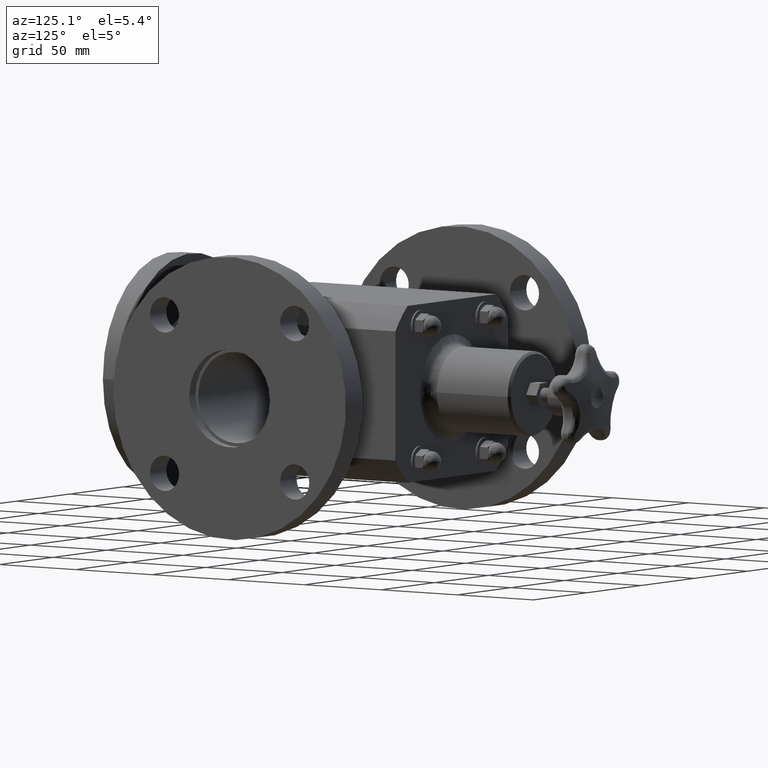
[diagram: clean part render]
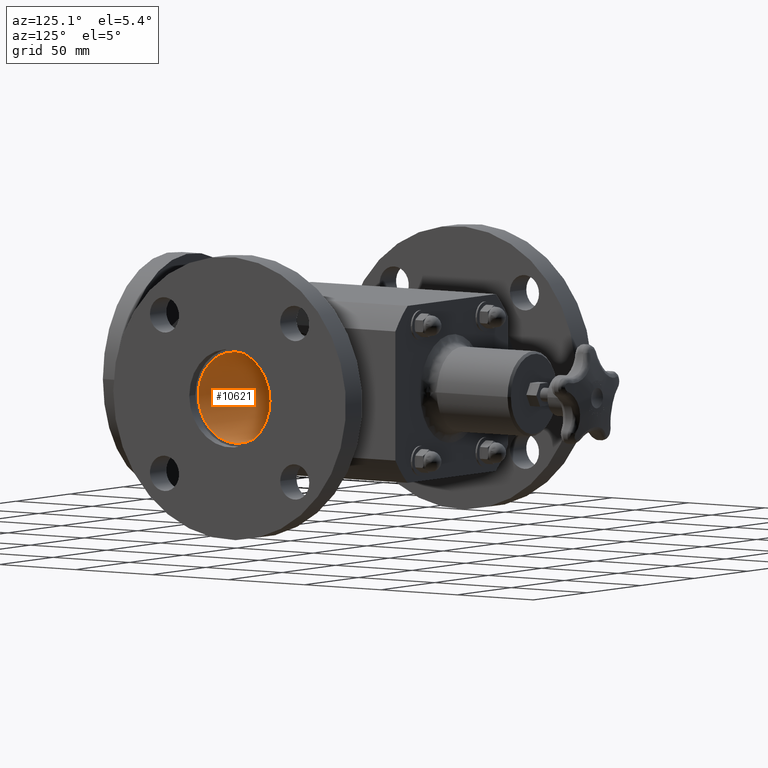
[diagram: same view with one face highlighted and labeled with its STEP entity id]
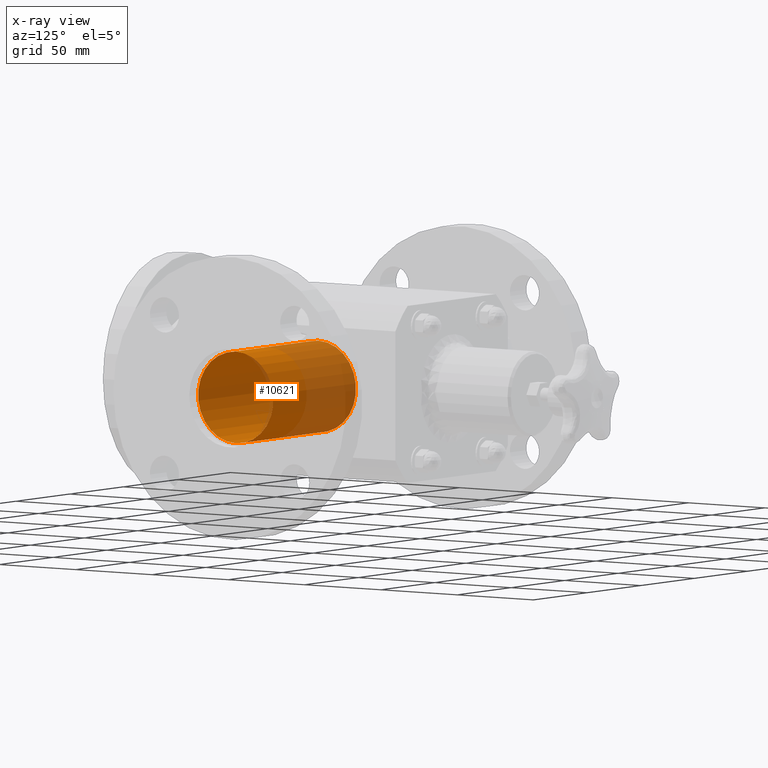
[diagram: x-ray of the same camera — body ghosted, the highlighted face saturated]
A machine part, auxiliary view. The second image highlights one B-rep face of the part: STEP entity #10621.
The next image is the same camera in x-ray: the body ghosted, the highlighted face saturated — about 37% of this face is hidden behind the body in this view.
In plain terms, the highlighted cylindrical surface (bore or boss wall) has radius 24.6253 mm, axis along (-1, -0, -0).
Its self-contained STEP definition (entity closure, byte-faithful):
#113=CARTESIAN_POINT('',(1.259999999999997,2.197999999999941,0.969500000000000));
#114=VERTEX_POINT('',#113);
#115=CARTESIAN_POINT('',(1.259999999999997,2.198000000000000,-1.278345E-016));
#116=DIRECTION('',(-1.0,0.0,0.0));
#117=DIRECTION('',(0.0,0.0,1.0));
#118=AXIS2_PLACEMENT_3D('',#115,#116,#117);
#119=CIRCLE('',#118,0.969500000000000);
#120=EDGE_CURVE('',#114,#114,#119,.T.);
#10570=CARTESIAN_POINT('',(4.289999999999997,2.197999999999944,0.969500000000000));
#10571=VERTEX_POINT('',#10570);
#10572=CARTESIAN_POINT('',(4.289999999999997,2.198000000000002,-2.306338E-017));
#10573=DIRECTION('',(-1.0,0.0,0.0));
#10574=DIRECTION('',(0.0,0.0,1.0));
#10575=AXIS2_PLACEMENT_3D('',#10572,#10573,#10574);
#10576=CIRCLE('',#10575,0.969500000000000);
#10577=EDGE_CURVE('',#10571,#10571,#10576,.T.);
#10610=CARTESIAN_POINT('',(2.774999999999997,2.198000000000001,-7.544892E-017));
#10611=DIRECTION('',(-1.0,-8.326673E-016,-3.457792E-017));
#10612=DIRECTION('',(0.0,0.0,1.0));
#10613=AXIS2_PLACEMENT_3D('',#10610,#10611,#10612);
#10614=CYLINDRICAL_SURFACE('',#10613,0.969500000000000);
#10615=ORIENTED_EDGE('',*,*,#10577,.F.);
#10616=EDGE_LOOP('',(#10615));
#10617=FACE_OUTER_BOUND('',#10616,.T.);
#10618=ORIENTED_EDGE('',*,*,#120,.T.);
#10619=EDGE_LOOP('',(#10618));
#10620=FACE_BOUND('',#10619,.T.);
#10621=ADVANCED_FACE('',(#10617,#10620),#10614,.F.);